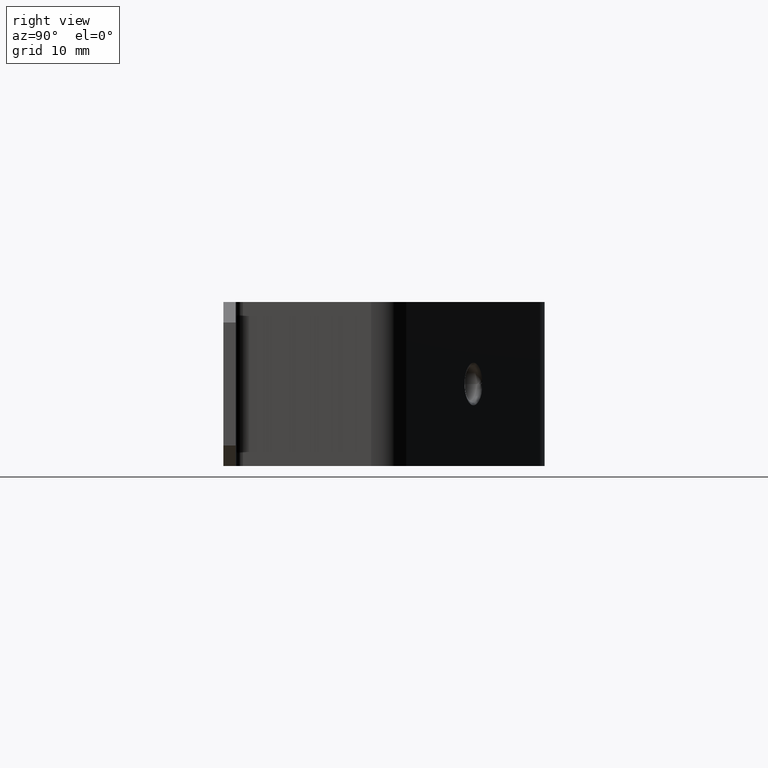
[diagram: clean part render]
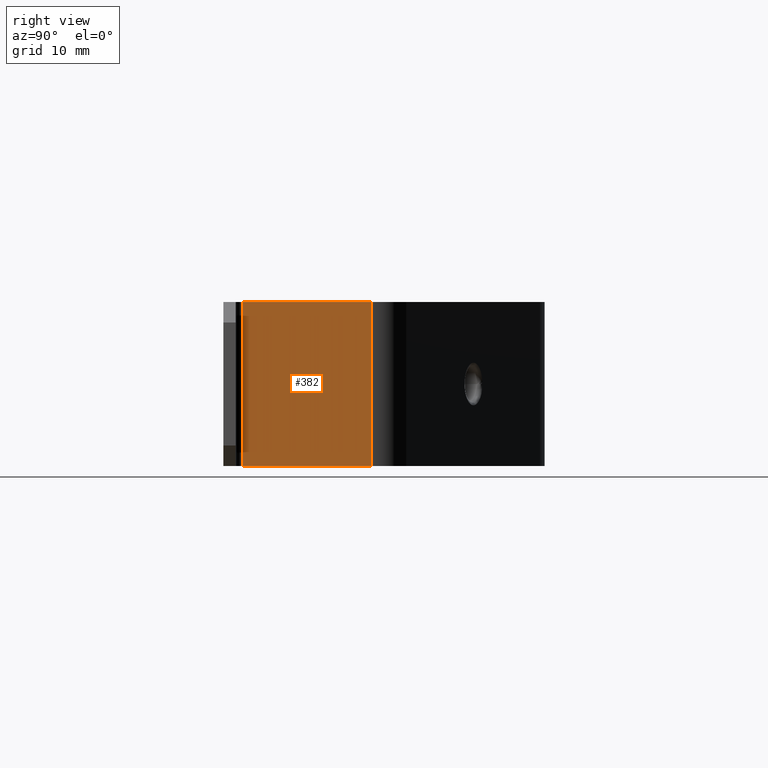
[diagram: same view with one face highlighted and labeled with its STEP entity id]
A machine part, right view. The second image highlights one B-rep face of the part: STEP entity #382.
In plain terms, the highlighted planar face has unit normal (0.9962, 0.0872, -0).
Its self-contained STEP definition (entity closure, byte-faithful):
#101 = CARTESIAN_POINT ( 'NONE',  ( 22.39549042891845300, -1.581778693683322900, 20.00000000000000000 ) ) ;
#107 = CARTESIAN_POINT ( 'NONE',  ( 23.76141398479526100, -17.19435637892365800, 20.00000000000000000 ) ) ;
#123 = CARTESIAN_POINT ( 'NONE',  ( 22.39549042891845300, -1.581778693683322900, 0.0000000000000000000 ) ) ;
#131 = CARTESIAN_POINT ( 'NONE',  ( 23.76141398479526100, -17.19435637892365800, 2.602085213965210600E-015 ) ) ;
#329 = EDGE_CURVE ( 'NONE', #1252, #1326, #606, .T. ) ;
#370 = EDGE_CURVE ( 'NONE', #1326, #1353, #829, .T. ) ;
#382 = ADVANCED_FACE ( 'NONE', ( #852 ), #855, .T. ) ;
#400 = EDGE_CURVE ( 'NONE', #1252, #1318, #964, .T. ) ;
#401 = EDGE_CURVE ( 'NONE', #1318, #1353, #960, .T. ) ;
#482 = DIRECTION ( 'NONE',  ( -0.0000000000000000000, -0.0000000000000000000, -1.000000000000000000 ) ) ;
#591 = DIRECTION ( 'NONE',  ( -0.0000000000000000000, -0.0000000000000000000, -1.000000000000000000 ) ) ;
#600 = CARTESIAN_POINT ( 'NONE',  ( 23.76141398479525400, -17.19435637892357200, 20.00000000000000000 ) ) ;
#606 = LINE ( 'NONE', #600, #1659 ) ;
#807 = CARTESIAN_POINT ( 'NONE',  ( 23.76141398479525400, -17.19435637892358000, 0.0000000000000000000 ) ) ;
#808 = DIRECTION ( 'NONE',  ( -0.08715574274769320700, 0.9961946980917425500, 0.0000000000000000000 ) ) ;
#829 = LINE ( 'NONE', #807, #1617 ) ;
#852 = FACE_OUTER_BOUND ( 'NONE', #994, .T. ) ;
#855 = PLANE ( 'NONE',  #1681 ) ;
#859 = CARTESIAN_POINT ( 'NONE',  ( 28.24484281014224500, -68.44018234832675800, 20.00000000000000000 ) ) ;
#860 = DIRECTION ( 'NONE',  ( 0.9961946980917425500, 0.08715574274769318000, -0.0000000000000000000 ) ) ;
#862 = DIRECTION ( 'NONE',  ( -0.08715574274769316600, 0.9961946980917424400, 0.0000000000000000000 ) ) ;
#960 = LINE ( 'NONE', #1368, #1688 ) ;
#964 = LINE ( 'NONE', #978, #1670 ) ;
#978 = CARTESIAN_POINT ( 'NONE',  ( 23.76141398479525400, -17.19435637892358000, 20.00000000000000000 ) ) ;
#979 = DIRECTION ( 'NONE',  ( -0.08715574274769320700, 0.9961946980917425500, 0.0000000000000000000 ) ) ;
#994 = EDGE_LOOP ( 'NONE', ( #1216, #1271, #1272, #1202 ) ) ;
#1202 = ORIENTED_EDGE ( 'NONE', *, *, #401, .F. ) ;
#1216 = ORIENTED_EDGE ( 'NONE', *, *, #400, .F. ) ;
#1252 = VERTEX_POINT ( 'NONE', #107 ) ;
#1271 = ORIENTED_EDGE ( 'NONE', *, *, #329, .T. ) ;
#1272 = ORIENTED_EDGE ( 'NONE', *, *, #370, .T. ) ;
#1318 = VERTEX_POINT ( 'NONE', #101 ) ;
#1326 = VERTEX_POINT ( 'NONE', #131 ) ;
#1353 = VERTEX_POINT ( 'NONE', #123 ) ;
#1368 = CARTESIAN_POINT ( 'NONE',  ( 22.39549042891847500, -1.581778693682631000, 20.00000000000000000 ) ) ;
#1617 = VECTOR ( 'NONE', #808, 999.9999999999998900 ) ;
#1659 = VECTOR ( 'NONE', #591, 1000.000000000000000 ) ;
#1670 = VECTOR ( 'NONE', #979, 999.9999999999998900 ) ;
#1681 = AXIS2_PLACEMENT_3D ( 'NONE', #859, #860, #862 ) ;
#1688 = VECTOR ( 'NONE', #482, 1000.000000000000000 ) ;